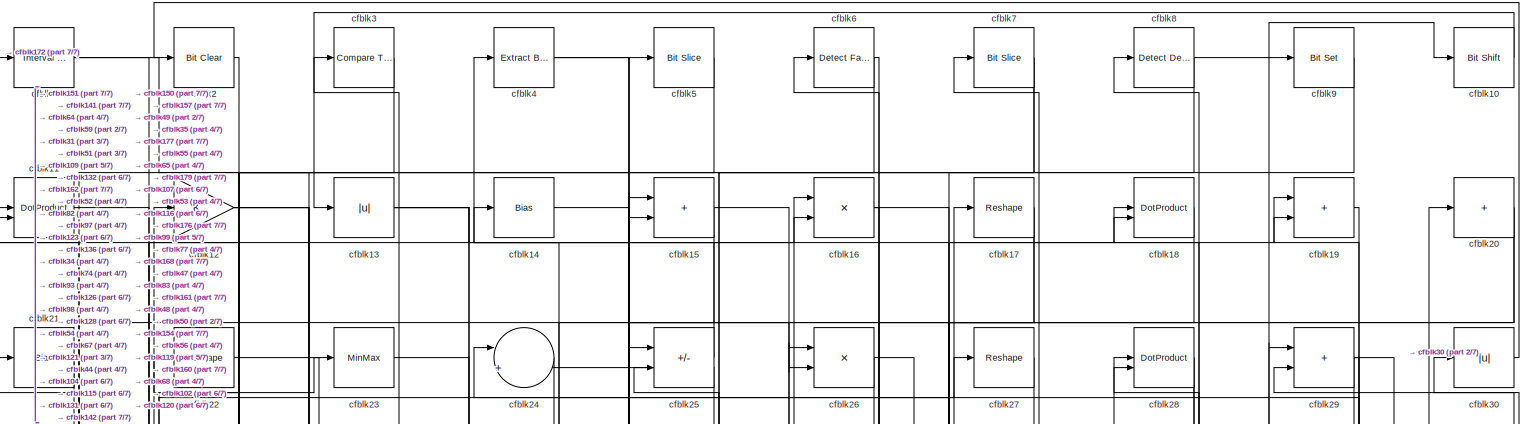
[diagram: root canvas - part 1/7, full width, top band]
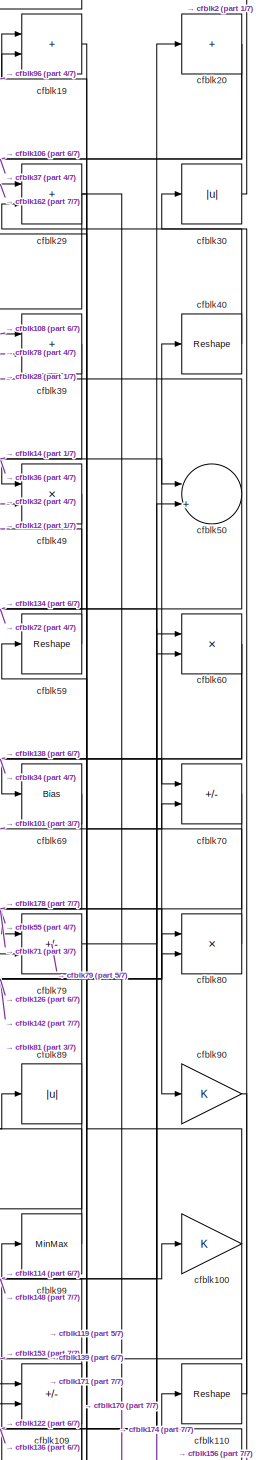
[diagram: root canvas - part 2/7, top right region]
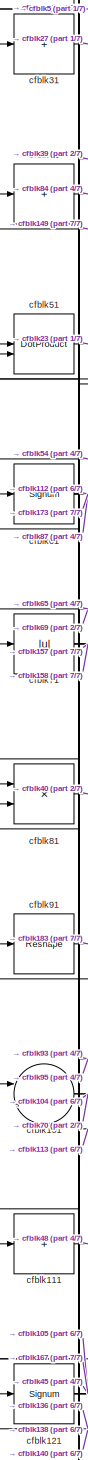
[diagram: root canvas - part 3/7, middle left region]
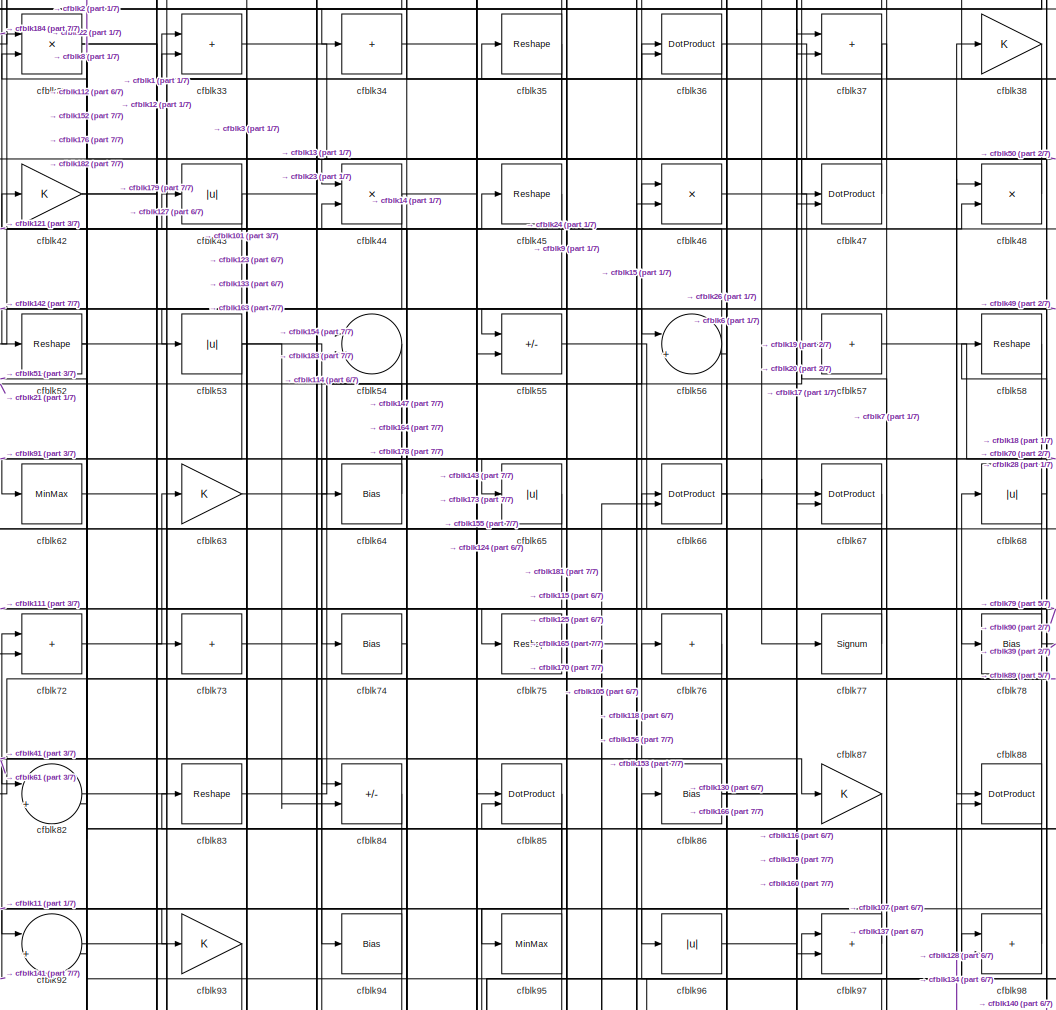
[diagram: root canvas - part 4/7, central region]
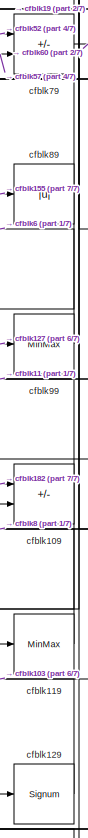
[diagram: root canvas - part 5/7, middle right region]
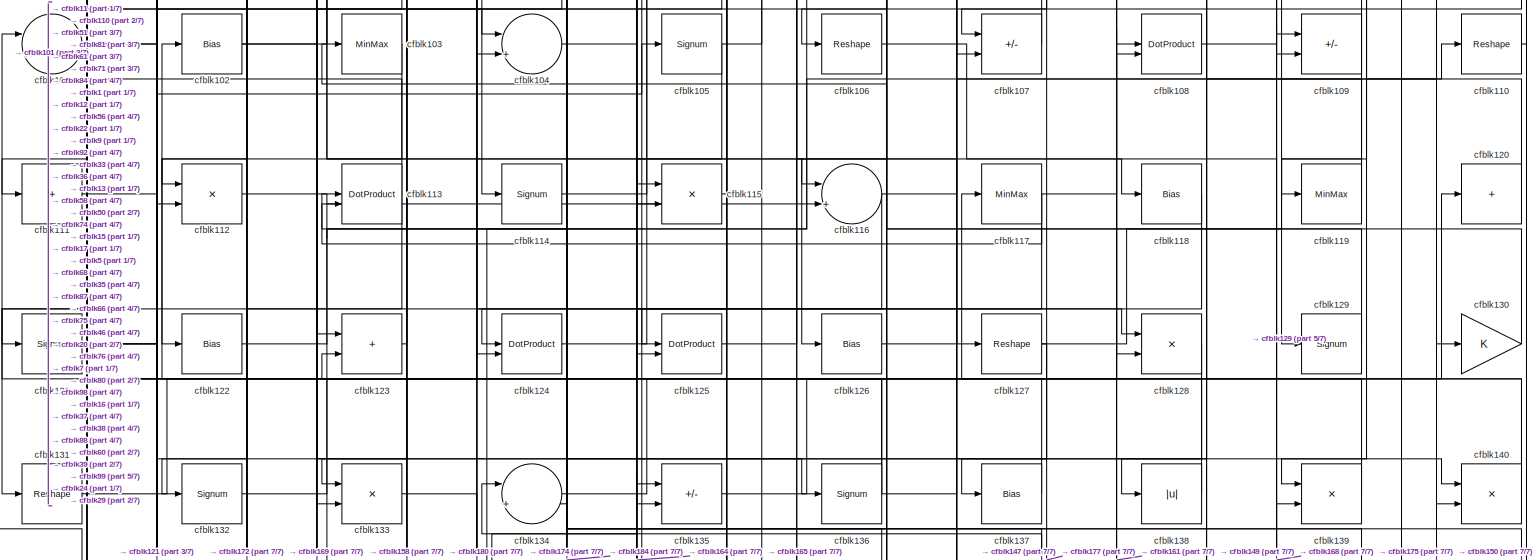
[diagram: root canvas - part 6/7, full width, middle band]
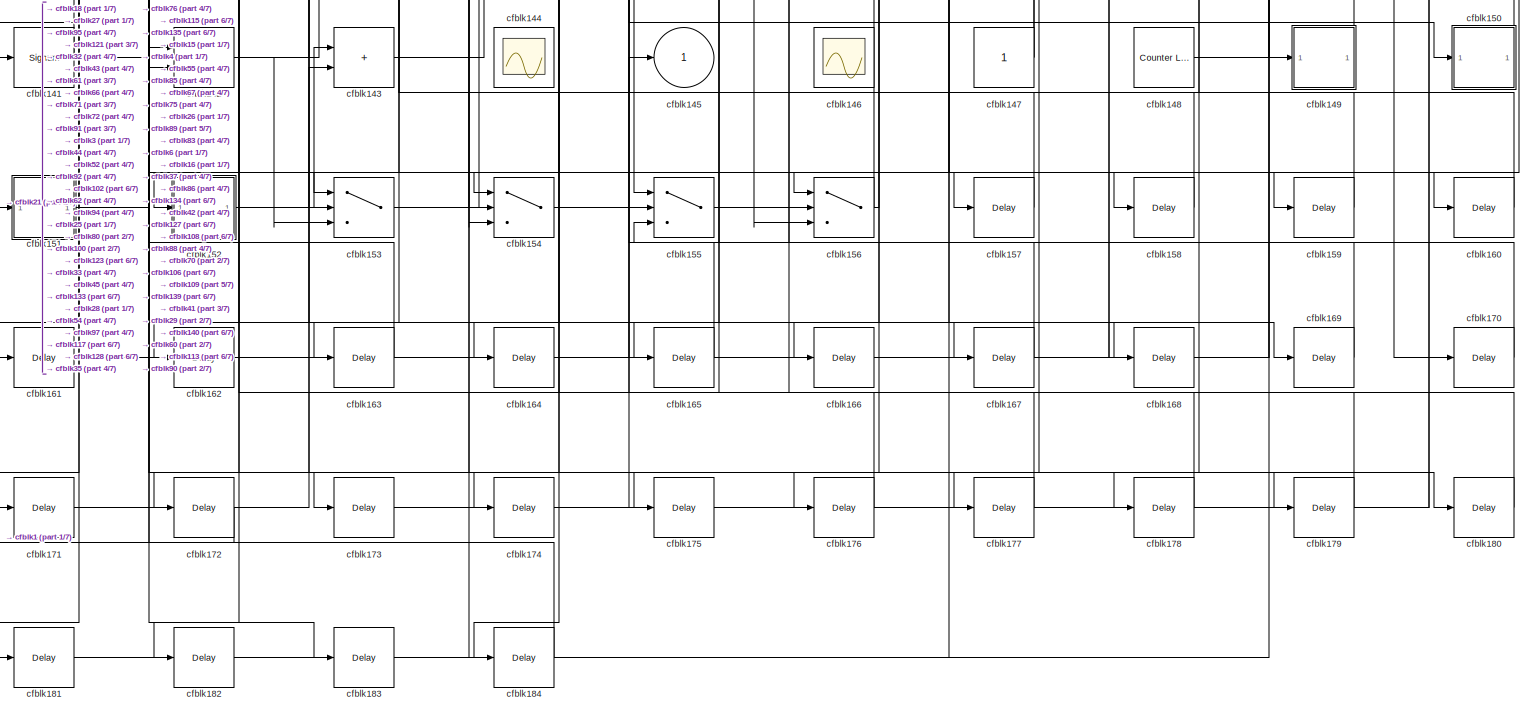
[diagram: root canvas - part 7/7, full width, bottom band]
MODEL slx_a82bd7659590
KIND model
CONFIG AbsTol = auto
CONFIG EnableMultiTasking = off
CONFIG FixedStep = auto
CONFIG MaxStep = auto
CONFIG MinStep = auto
CONFIG RelTol = 1e-3
CONFIG SampleTimeConstraint = Unconstrained
CONFIG SolverName = VariableStepAuto
CONFIG StartTime = 0.0
CONFIG StopTime = 10.0
BLOCK [Reference] cfblk1  REF=hdlsllib/Logic and Bit
Operations/Interval Test
  SourceBlock = hdlsllib/Logic and Bit\nOperations/Interval Test
  SourceType = Interval Test
BLOCK [Reference] cfblk10  REF=hdlsllib/Logic and Bit
Operations/Bit Shift
  SourceBlock = hdlsllib/Logic and Bit\nOperations/Bit Shift
  SourceType = Bit Shift
BLOCK [Gain] cfblk100
BLOCK [Sum] cfblk101
  Inputs = |++
BLOCK [Bias] cfblk102
  Bias = 0.0
  SaturateOnIntegerOverflow = off
BLOCK [MinMax] cfblk103
BLOCK [Sum] cfblk104
  Inputs = |++
BLOCK [Signum] cfblk105
BLOCK [Reshape] cfblk106
BLOCK [Sum] cfblk107
  IconShape = rectangular
  Inputs = +-
BLOCK [DotProduct] cfblk108
  OutDataTypeStr = Inherit: Inherit via internal rule
BLOCK [Sum] cfblk109
  IconShape = rectangular
  Inputs = +-
BLOCK [DotProduct] cfblk11
  OutDataTypeStr = Inherit: Inherit via internal rule
BLOCK [Reshape] cfblk110
BLOCK [Sum] cfblk111
  IconShape = rectangular
  Inputs = +
BLOCK [Product] cfblk112
  Inputs = */
  RndMeth = Zero
  SaturateOnIntegerOverflow = on
BLOCK [DotProduct] cfblk113
  OutDataTypeStr = Inherit: Inherit via internal rule
BLOCK [Signum] cfblk114
BLOCK [Product] cfblk115
  Inputs = */
  RndMeth = Zero
  SaturateOnIntegerOverflow = on
BLOCK [Sum] cfblk116
  Inputs = |++
BLOCK [MinMax] cfblk117
BLOCK [Bias] cfblk118
  Bias = 0.0
  SaturateOnIntegerOverflow = off
BLOCK [MinMax] cfblk119
BLOCK [Gain] cfblk12
BLOCK [Sum] cfblk120
  IconShape = rectangular
  Inputs = +
BLOCK [Signum] cfblk121
BLOCK [Bias] cfblk122
  Bias = 0.0
  SaturateOnIntegerOverflow = off
BLOCK [Sum] cfblk123
  IconShape = rectangular
BLOCK [DotProduct] cfblk124
  OutDataTypeStr = Inherit: Inherit via internal rule
BLOCK [DotProduct] cfblk125
  OutDataTypeStr = Inherit: Inherit via internal rule
BLOCK [Bias] cfblk126
  Bias = 0.0
  SaturateOnIntegerOverflow = off
BLOCK [Reshape] cfblk127
BLOCK [Product] cfblk128
  Inputs = */
  RndMeth = Zero
  SaturateOnIntegerOverflow = on
BLOCK [Signum] cfblk129
BLOCK [Abs] cfblk13
  SaturateOnIntegerOverflow = off
BLOCK [Gain] cfblk130
BLOCK [Reshape] cfblk131
BLOCK [Signum] cfblk132
BLOCK [Product] cfblk133
  Inputs = */
  RndMeth = Zero
  SaturateOnIntegerOverflow = on
BLOCK [Sum] cfblk134
  Inputs = |++
BLOCK [Sum] cfblk135
  IconShape = rectangular
  Inputs = +-
BLOCK [Signum] cfblk136
BLOCK [Bias] cfblk137
  Bias = 0.0
  SaturateOnIntegerOverflow = off
BLOCK [Abs] cfblk138
  SaturateOnIntegerOverflow = off
BLOCK [Product] cfblk139
  Inputs = */
  RndMeth = Zero
  SaturateOnIntegerOverflow = on
BLOCK [Bias] cfblk14
  Bias = 0.0
  SaturateOnIntegerOverflow = off
BLOCK [Product] cfblk140
  Inputs = */
  RndMeth = Zero
  SaturateOnIntegerOverflow = on
BLOCK [Signum] cfblk141
BLOCK [Sum] cfblk142
  IconShape = rectangular
BLOCK [Sum] cfblk143
  IconShape = rectangular
BLOCK [Scope] cfblk144
  Floating = on
  NumInputPorts = 1
  ScopeSpecificationString = Simulink.scopes.TimeScopeBlockCfg('CurrentConfiguration', extmgr.ConfigurationSet(extmgr.Configuration('Core','General UI',true,'FigureColor',[0.156862745098039 0.156862745098039 0.156862745098039]),extmgr.Configuration('Core','Source UI',true),extmgr.Configuration('Sources','WiredSimulink',true,'DataLoggingVariableName','ScopeData1','DataLoggingSaveFormat','StructureWithTime','DataLoggingLimitDat...<+2713ch>
BLOCK [Outport] cfblk145
  VectorParamsAs1DForOutWhenUnconnected = off
BLOCK [Scope] cfblk146
  Floating = on
  NumInputPorts = 1
  ScopeSpecificationString = Simulink.scopes.TimeScopeBlockCfg('CurrentConfiguration', extmgr.ConfigurationSet(extmgr.Configuration('Core','General UI',true,'FigureColor',[0.156862745098039 0.156862745098039 0.156862745098039]),extmgr.Configuration('Core','Source UI',true),extmgr.Configuration('Sources','WiredSimulink',true,'DataLoggingVariableName','ScopeData1','DataLoggingSaveFormat','StructureWithTime','DataLoggingLimitDat...<+2713ch>
BLOCK [Constant] cfblk147
  SampleTime = -1
BLOCK [Reference] cfblk148  REF=hdlsllib/Sources/Counter
Limited
  SourceBlock = hdlsllib/Sources/Counter\nLimited
  SourceType = Counter Limited
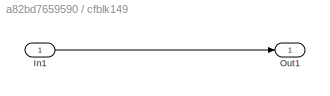
BLOCK [SubSystem] cfblk149
  LibrarySourceBlock = hdlsllib/Ports &\nSubsystems/Subsystem
BLOCK [Inport] cfblk149/In1
BLOCK [Outport] cfblk149/Out1
BLOCK [Sum] cfblk15
  IconShape = rectangular
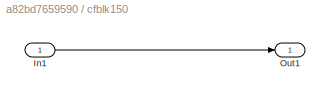
BLOCK [SubSystem] cfblk150
  LibrarySourceBlock = hdlsllib/Ports &\nSubsystems/Subsystem
BLOCK [Inport] cfblk150/In1
BLOCK [Outport] cfblk150/Out1
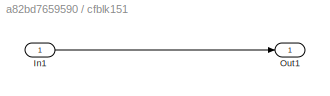
BLOCK [SubSystem] cfblk151
  LibrarySourceBlock = hdlsllib/Ports &\nSubsystems/Subsystem
BLOCK [Inport] cfblk151/In1
BLOCK [Outport] cfblk151/Out1
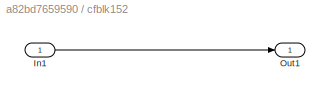
BLOCK [SubSystem] cfblk152
  LibrarySourceBlock = hdlsllib/Ports &\nSubsystems/Subsystem
BLOCK [Inport] cfblk152/In1
BLOCK [Outport] cfblk152/Out1
BLOCK [Switch] cfblk153
  InputSameDT = off
  SaturateOnIntegerOverflow = off
BLOCK [Switch] cfblk154
  InputSameDT = off
  SaturateOnIntegerOverflow = off
BLOCK [Switch] cfblk155
  InputSameDT = off
  SaturateOnIntegerOverflow = off
BLOCK [Switch] cfblk156
  InputSameDT = off
  SaturateOnIntegerOverflow = off
BLOCK [Delay] cfblk157
  InputPortMap = u0
  SampleTime = 1
BLOCK [Delay] cfblk158
  InputPortMap = u0
  SampleTime = 1
BLOCK [Delay] cfblk159
  InputPortMap = u0
  SampleTime = 1
BLOCK [Product] cfblk16
  Inputs = */
  RndMeth = Zero
  SaturateOnIntegerOverflow = on
BLOCK [Delay] cfblk160
  InputPortMap = u0
  SampleTime = 1
BLOCK [Delay] cfblk161
  InputPortMap = u0
  SampleTime = 1
BLOCK [Delay] cfblk162
  InputPortMap = u0
  SampleTime = 1
BLOCK [Delay] cfblk163
  InputPortMap = u0
  SampleTime = 1
BLOCK [Delay] cfblk164
  InputPortMap = u0
  SampleTime = 1
BLOCK [Delay] cfblk165
  InputPortMap = u0
  SampleTime = 1
BLOCK [Delay] cfblk166
  InputPortMap = u0
  SampleTime = 1
BLOCK [Delay] cfblk167
  InputPortMap = u0
  SampleTime = 1
BLOCK [Delay] cfblk168
  InputPortMap = u0
  SampleTime = 1
BLOCK [Delay] cfblk169
  InputPortMap = u0
  SampleTime = 1
BLOCK [Reshape] cfblk17
BLOCK [Delay] cfblk170
  InputPortMap = u0
  SampleTime = 1
BLOCK [Delay] cfblk171
  InputPortMap = u0
  SampleTime = 1
BLOCK [Delay] cfblk172
  InputPortMap = u0
  SampleTime = 1
BLOCK [Delay] cfblk173
  InputPortMap = u0
  SampleTime = 1
BLOCK [Delay] cfblk174
  InputPortMap = u0
  SampleTime = 1
BLOCK [Delay] cfblk175
  InputPortMap = u0
  SampleTime = 1
BLOCK [Delay] cfblk176
  InputPortMap = u0
  SampleTime = 1
BLOCK [Delay] cfblk177
  InputPortMap = u0
  SampleTime = 1
BLOCK [Delay] cfblk178
  InputPortMap = u0
  SampleTime = 1
BLOCK [Delay] cfblk179
  InputPortMap = u0
  SampleTime = 1
BLOCK [DotProduct] cfblk18
  OutDataTypeStr = Inherit: Inherit via internal rule
BLOCK [Delay] cfblk180
  InputPortMap = u0
  SampleTime = 1
BLOCK [Delay] cfblk181
  InputPortMap = u0
  SampleTime = 1
BLOCK [Delay] cfblk182
  InputPortMap = u0
  SampleTime = 1
BLOCK [Delay] cfblk183
  InputPortMap = u0
  SampleTime = 1
BLOCK [Delay] cfblk184
  InputPortMap = u0
  SampleTime = 1
BLOCK [Sum] cfblk19
  IconShape = rectangular
BLOCK [Reference] cfblk2  REF=simulink/Logic and Bit
Operations/Bit Clear
  LibrarySourceBlock = hdlsllib/Logic and Bit\nOperations/Bit Clear
  SourceBlock = simulink/Logic and Bit\nOperations/Bit Clear
  SourceType = Bit Clear
BLOCK [Sum] cfblk20
  IconShape = rectangular
  Inputs = +
BLOCK [Bias] cfblk21
  Bias = 0.0
  SaturateOnIntegerOverflow = off
BLOCK [Reshape] cfblk22
BLOCK [MinMax] cfblk23
BLOCK [Sum] cfblk24
  Inputs = |++
BLOCK [Sum] cfblk25
  IconShape = rectangular
  Inputs = +-
BLOCK [Product] cfblk26
  Inputs = */
  RndMeth = Zero
  SaturateOnIntegerOverflow = on
BLOCK [Reshape] cfblk27
BLOCK [DotProduct] cfblk28
  OutDataTypeStr = Inherit: Inherit via internal rule
BLOCK [Sum] cfblk29
  IconShape = rectangular
BLOCK [Reference] cfblk3  REF=hdlsllib/Logic and Bit
Operations/Compare
To Zero
  SourceBlock = hdlsllib/Logic and Bit\nOperations/Compare\nTo Zero
  SourceType = Compare To Zero
BLOCK [Abs] cfblk30
  SaturateOnIntegerOverflow = off
BLOCK [Sum] cfblk31
  IconShape = rectangular
  Inputs = +
BLOCK [Product] cfblk32
  Inputs = */
  RndMeth = Zero
  SaturateOnIntegerOverflow = on
BLOCK [Sum] cfblk33
  IconShape = rectangular
BLOCK [Sum] cfblk34
  IconShape = rectangular
  Inputs = +
BLOCK [Reshape] cfblk35
BLOCK [DotProduct] cfblk36
  OutDataTypeStr = Inherit: Inherit via internal rule
BLOCK [Sum] cfblk37
  IconShape = rectangular
BLOCK [Gain] cfblk38
BLOCK [Sum] cfblk39
  IconShape = rectangular
BLOCK [Reference] cfblk4  REF=simulink/Logic and Bit
Operations/Extract Bits
  LibrarySourceBlock = hdlsllib/Logic and Bit\nOperations/Extract Bits
  SourceBlock = simulink/Logic and Bit\nOperations/Extract Bits
  SourceType = Extract Bits
BLOCK [Reshape] cfblk40
BLOCK [Sum] cfblk41
  IconShape = rectangular
  Inputs = +
BLOCK [Gain] cfblk42
BLOCK [Abs] cfblk43
  SaturateOnIntegerOverflow = off
BLOCK [Product] cfblk44
  Inputs = */
  RndMeth = Zero
  SaturateOnIntegerOverflow = on
BLOCK [Reshape] cfblk45
BLOCK [Product] cfblk46
  Inputs = */
  RndMeth = Zero
  SaturateOnIntegerOverflow = on
BLOCK [DotProduct] cfblk47
  OutDataTypeStr = Inherit: Inherit via internal rule
BLOCK [Product] cfblk48
  Inputs = */
  RndMeth = Zero
  SaturateOnIntegerOverflow = on
BLOCK [Product] cfblk49
  Inputs = */
  RndMeth = Zero
  SaturateOnIntegerOverflow = on
BLOCK [Reference] cfblk5  REF=hdlsllib/Logic and Bit
Operations/Bit Slice
  SourceBlock = hdlsllib/Logic and Bit\nOperations/Bit Slice
  SourceType = Bit Slice
BLOCK [Sum] cfblk50
  Inputs = |++
BLOCK [DotProduct] cfblk51
  OutDataTypeStr = Inherit: Inherit via internal rule
BLOCK [Reshape] cfblk52
BLOCK [Abs] cfblk53
  SaturateOnIntegerOverflow = off
BLOCK [Sum] cfblk54
  Inputs = |++
BLOCK [Sum] cfblk55
  IconShape = rectangular
  Inputs = +-
BLOCK [Sum] cfblk56
  Inputs = |++
BLOCK [Sum] cfblk57
  IconShape = rectangular
  Inputs = +
BLOCK [Reshape] cfblk58
BLOCK [Reshape] cfblk59
BLOCK [Reference] cfblk6  REF=hdlsllib/Logic and Bit
Operations/Detect Fall
Negative
  SourceBlock = hdlsllib/Logic and Bit\nOperations/Detect Fall\nNegative
  SourceType = Detect Fall Negative
BLOCK [Product] cfblk60
  Inputs = */
  RndMeth = Zero
  SaturateOnIntegerOverflow = on
BLOCK [Signum] cfblk61
BLOCK [MinMax] cfblk62
BLOCK [Gain] cfblk63
BLOCK [Bias] cfblk64
  Bias = 0.0
  SaturateOnIntegerOverflow = off
BLOCK [Abs] cfblk65
  SaturateOnIntegerOverflow = off
BLOCK [DotProduct] cfblk66
  OutDataTypeStr = Inherit: Inherit via internal rule
BLOCK [DotProduct] cfblk67
  OutDataTypeStr = Inherit: Inherit via internal rule
BLOCK [Abs] cfblk68
  SaturateOnIntegerOverflow = off
BLOCK [Bias] cfblk69
  Bias = 0.0
  SaturateOnIntegerOverflow = off
BLOCK [Reference] cfblk7  REF=hdlsllib/Logic and Bit
Operations/Bit Slice
  SourceBlock = hdlsllib/Logic and Bit\nOperations/Bit Slice
  SourceType = Bit Slice
BLOCK [Sum] cfblk70
  IconShape = rectangular
  Inputs = +-
BLOCK [Abs] cfblk71
  SaturateOnIntegerOverflow = off
BLOCK [Sum] cfblk72
  IconShape = rectangular
BLOCK [Sum] cfblk73
  IconShape = rectangular
  Inputs = +
BLOCK [Bias] cfblk74
  Bias = 0.0
  SaturateOnIntegerOverflow = off
BLOCK [Reshape] cfblk75
BLOCK [Sum] cfblk76
  IconShape = rectangular
  Inputs = +
BLOCK [Signum] cfblk77
BLOCK [Bias] cfblk78
  Bias = 0.0
  SaturateOnIntegerOverflow = off
BLOCK [Sum] cfblk79
  IconShape = rectangular
  Inputs = +-
BLOCK [Reference] cfblk8  REF=simulink/Logic and Bit
Operations/Detect
Decrease
  LibrarySourceBlock = hdlsllib/Logic and Bit\nOperations/Detect\nDecrease
  SourceBlock = simulink/Logic and Bit\nOperations/Detect\nDecrease
  SourceType = Detect Decrease
BLOCK [Product] cfblk80
  Inputs = */
  RndMeth = Zero
  SaturateOnIntegerOverflow = on
BLOCK [Product] cfblk81
  Inputs = */
  RndMeth = Zero
  SaturateOnIntegerOverflow = on
BLOCK [Sum] cfblk82
  Inputs = |++
BLOCK [Reshape] cfblk83
BLOCK [Sum] cfblk84
  IconShape = rectangular
  Inputs = +-
BLOCK [DotProduct] cfblk85
  OutDataTypeStr = Inherit: Inherit via internal rule
BLOCK [Bias] cfblk86
  Bias = 0.0
  SaturateOnIntegerOverflow = off
BLOCK [Gain] cfblk87
BLOCK [DotProduct] cfblk88
  OutDataTypeStr = Inherit: Inherit via internal rule
BLOCK [Abs] cfblk89
  SaturateOnIntegerOverflow = off
BLOCK [Reference] cfblk9  REF=simulink/Logic and Bit
Operations/Bit Set
  LibrarySourceBlock = hdlsllib/Logic and Bit\nOperations/Bit Set
  SourceBlock = simulink/Logic and Bit\nOperations/Bit Set
  SourceType = Bit Set
BLOCK [Gain] cfblk90
BLOCK [Reshape] cfblk91
BLOCK [Sum] cfblk92
  Inputs = |++
BLOCK [Gain] cfblk93
BLOCK [Bias] cfblk94
  Bias = 0.0
  SaturateOnIntegerOverflow = off
BLOCK [MinMax] cfblk95
BLOCK [Abs] cfblk96
  SaturateOnIntegerOverflow = off
BLOCK [Sum] cfblk97
  IconShape = rectangular
BLOCK [Sum] cfblk98
  IconShape = rectangular
BLOCK [MinMax] cfblk99
NET cfblk100:1 -> cfblk153:1, cfblk19:1
NET cfblk101:1 -> cfblk104:1, cfblk70:2
NET cfblk102:1 -> cfblk169:1, cfblk9:1
LINE cfblk103:1 -> cfblk122:1
LINE cfblk104:1 -> cfblk5:1
NET cfblk105:1 -> cfblk125:2, cfblk66:2
LINE cfblk106:1 -> cfblk149:1
LINE cfblk107:1 -> cfblk16:1
LINE cfblk108:1 -> cfblk39:1
NET cfblk109:1 -> cfblk11:1, cfblk129:1
LINE cfblk10:1 -> cfblk13:1
LINE cfblk110:1 -> cfblk30:1
LINE cfblk111:1 -> cfblk48:2
LINE cfblk112:1 -> cfblk116:2
NET cfblk113:1 -> cfblk172:1, cfblk61:1
LINE cfblk114:1 -> cfblk50:2
LINE cfblk115:1 -> cfblk35:1
NET cfblk116:1 -> cfblk135:2, cfblk98:1
NET cfblk117:1 -> cfblk108:1, cfblk113:2, cfblk174:1
LINE cfblk118:1 -> cfblk131:1
LINE cfblk119:1 -> cfblk8:1
LINE cfblk11:1 -> cfblk98:2
LINE cfblk120:1 -> cfblk24:1
NET cfblk121:1 -> cfblk105:1, cfblk167:1, cfblk45:1
LINE cfblk122:1 -> cfblk20:1
LINE cfblk123:1 -> cfblk33:1
LINE cfblk124:1 -> cfblk68:1
LINE cfblk125:1 -> cfblk46:2
LINE cfblk126:1 -> cfblk80:1
NET cfblk127:1 -> cfblk177:1, cfblk99:1
LINE cfblk128:1 -> cfblk184:1
LINE cfblk129:1 -> cfblk103:1
NET cfblk12:1 -> cfblk136:1, cfblk34:1, cfblk74:1
LINE cfblk130:1 -> cfblk76:1
LINE cfblk131:1 -> cfblk15:2
LINE cfblk132:1 -> cfblk104:2
LINE cfblk133:1 -> cfblk180:1
LINE cfblk134:1 -> cfblk38:1
LINE cfblk135:1 -> cfblk120:1
NET cfblk136:1 -> cfblk110:1, cfblk11:2, cfblk81:2
LINE cfblk137:1 -> cfblk117:1
LINE cfblk138:1 -> cfblk101:1
LINE cfblk139:1 -> cfblk102:1
NET cfblk13:1 -> cfblk128:1, cfblk16:2, cfblk54:2
NET cfblk140:1 -> cfblk51:2, cfblk58:1
NET cfblk141:1 -> cfblk175:1, cfblk66:1, cfblk72:1
NET cfblk142:1 -> cfblk153:3, cfblk25:1, cfblk80:2
LINE cfblk143:1 -> cfblk85:1
NET cfblk147:1 -> cfblk134:1, cfblk42:1
LINE cfblk148:1 -> cfblk100:1
LINE cfblk149/In1:1 -> cfblk149/Out1:1
LINE cfblk149:1 -> cfblk41:1
LINE cfblk14:1 -> cfblk49:1
LINE cfblk150/In1:1 -> cfblk150/Out1:1
LINE cfblk150:1 -> cfblk113:1
LINE cfblk151/In1:1 -> cfblk151/Out1:1
LINE cfblk151:1 -> cfblk18:1
LINE cfblk152/In1:1 -> cfblk152/Out1:1
LINE cfblk152:1 -> cfblk143:1
LINE cfblk153:1 -> cfblk97:1
LINE cfblk154:1 -> cfblk145:1
LINE cfblk155:1 -> cfblk89:1
NET cfblk156:1 -> cfblk83:1, cfblk86:1
LINE cfblk157:1 -> cfblk15:1
LINE cfblk158:1 -> cfblk123:2
LINE cfblk159:1 -> cfblk33:2
NET cfblk15:1 -> cfblk44:1, cfblk97:2
LINE cfblk160:1 -> cfblk28:2
LINE cfblk161:1 -> cfblk108:2
LINE cfblk162:1 -> cfblk29:1
LINE cfblk163:1 -> cfblk142:1
LINE cfblk164:1 -> cfblk135:1
LINE cfblk165:1 -> cfblk115:1
LINE cfblk166:1 -> cfblk88:2
LINE cfblk167:1 -> cfblk156:2
LINE cfblk168:1 -> cfblk139:2
LINE cfblk169:1 -> cfblk155:3
NET cfblk16:1 -> cfblk116:1, cfblk168:1
LINE cfblk170:1 -> cfblk85:2
LINE cfblk171:1 -> cfblk143:2
LINE cfblk172:1 -> cfblk1:1
LINE cfblk173:1 -> cfblk55:2
LINE cfblk174:1 -> cfblk60:2
LINE cfblk175:1 -> cfblk140:2
LINE cfblk176:1 -> cfblk92:2
LINE cfblk177:1 -> cfblk25:2
LINE cfblk178:1 -> cfblk44:2
LINE cfblk179:1 -> cfblk26:1
NET cfblk17:1 -> cfblk115:2, cfblk47:2
LINE cfblk180:1 -> cfblk155:2
LINE cfblk181:1 -> cfblk37:1
LINE cfblk182:1 -> cfblk109:1
LINE cfblk183:1 -> cfblk54:1
LINE cfblk184:1 -> cfblk32:1
LINE cfblk18:1 -> cfblk141:1
LINE cfblk19:1 -> cfblk119:1
NET cfblk1:1 -> cfblk123:1, cfblk93:1
NET cfblk20:1 -> cfblk106:1, cfblk37:2
LINE cfblk21:1 -> cfblk151:1
LINE cfblk22:1 -> cfblk126:1
LINE cfblk23:1 -> cfblk67:2
LINE cfblk24:1 -> cfblk121:1
LINE cfblk25:1 -> cfblk4:1
NET cfblk26:1 -> cfblk53:1, cfblk77:1
LINE cfblk27:1 -> cfblk161:1
NET cfblk28:1 -> cfblk154:3, cfblk56:2
NET cfblk29:1 -> cfblk139:1, cfblk170:1, cfblk171:1
LINE cfblk2:1 -> cfblk82:1
LINE cfblk30:1 -> cfblk2:1
LINE cfblk31:1 -> cfblk27:1
NET cfblk32:1 -> cfblk49:2, cfblk73:1
LINE cfblk33:1 -> cfblk88:1
LINE cfblk34:1 -> cfblk70:1
NET cfblk35:1 -> cfblk124:2, cfblk154:1, cfblk24:2
NET cfblk36:1 -> cfblk133:1, cfblk50:1
NET cfblk37:1 -> cfblk107:1, cfblk95:1, cfblk96:1
LINE cfblk38:1 -> cfblk82:2
LINE cfblk39:1 -> cfblk81:1
LINE cfblk3:1 -> cfblk162:1
LINE cfblk40:1 -> cfblk29:2
LINE cfblk41:1 -> cfblk84:1
NET cfblk42:1 -> cfblk36:1, cfblk56:1
NET cfblk43:1 -> cfblk142:2, cfblk47:1
NET cfblk44:1 -> cfblk152:1, cfblk36:2
LINE cfblk45:1 -> cfblk163:1
LINE cfblk46:1 -> cfblk130:1
LINE cfblk47:1 -> cfblk14:1
LINE cfblk48:1 -> cfblk7:1
LINE cfblk49:1 -> cfblk72:2
NET cfblk4:1 -> cfblk150:1, cfblk26:2
NET cfblk50:1 -> cfblk134:2, cfblk28:1
LINE cfblk51:1 -> cfblk23:1
NET cfblk52:1 -> cfblk182:1, cfblk79:1
NET cfblk53:1 -> cfblk62:1, cfblk84:2, cfblk94:1
LINE cfblk54:1 -> cfblk91:1
LINE cfblk55:1 -> cfblk90:1
NET cfblk56:1 -> cfblk133:2, cfblk43:1
LINE cfblk57:1 -> cfblk79:2
LINE cfblk58:1 -> cfblk114:1
LINE cfblk59:1 -> cfblk12:1
LINE cfblk5:1 -> cfblk31:1
NET cfblk60:1 -> cfblk138:1, cfblk69:1
NET cfblk61:1 -> cfblk112:2, cfblk173:1, cfblk87:1
LINE cfblk62:1 -> cfblk179:1
LINE cfblk63:1 -> cfblk46:1
LINE cfblk64:1 -> cfblk21:1
LINE cfblk65:1 -> cfblk111:1
NET cfblk66:1 -> cfblk166:1, cfblk67:1
LINE cfblk67:1 -> cfblk165:1
NET cfblk68:1 -> cfblk137:1, cfblk18:2
LINE cfblk69:1 -> cfblk71:1
NET cfblk6:1 -> cfblk176:1, cfblk55:1
LINE cfblk70:1 -> cfblk178:1
NET cfblk71:1 -> cfblk140:1, cfblk157:1, cfblk158:1
LINE cfblk72:1 -> cfblk63:1
LINE cfblk73:1 -> cfblk78:1
LINE cfblk74:1 -> cfblk124:1
NET cfblk75:1 -> cfblk118:1, cfblk156:3
LINE cfblk76:1 -> cfblk164:1
LINE cfblk77:1 -> cfblk64:1
NET cfblk78:1 -> cfblk39:2, cfblk75:1
LINE cfblk79:1 -> cfblk60:1
NET cfblk7:1 -> cfblk107:2, cfblk132:1
LINE cfblk80:1 -> cfblk59:1
LINE cfblk81:1 -> cfblk40:1
LINE cfblk82:1 -> cfblk48:1
LINE cfblk83:1 -> cfblk17:1
LINE cfblk84:1 -> cfblk112:1
NET cfblk85:1 -> cfblk154:2, cfblk155:1
NET cfblk86:1 -> cfblk159:1, cfblk160:1
LINE cfblk87:1 -> cfblk125:1
NET cfblk88:1 -> cfblk128:2, cfblk32:2
NET cfblk89:1 -> cfblk109:2, cfblk57:1
NET cfblk8:1 -> cfblk10:1, cfblk52:1
LINE cfblk90:1 -> cfblk156:1
LINE cfblk91:1 -> cfblk183:1
LINE cfblk92:1 -> cfblk127:1
LINE cfblk93:1 -> cfblk101:2
NET cfblk94:1 -> cfblk153:2, cfblk92:1
NET cfblk95:1 -> cfblk181:1, cfblk51:1
LINE cfblk96:1 -> cfblk19:2
LINE cfblk97:1 -> cfblk22:1
LINE cfblk98:1 -> cfblk3:1
LINE cfblk99:1 -> cfblk6:1
LINE cfblk9:1 -> cfblk65:1
note: NET lines group one-source signal fan-out (src -> all destinations, sorted); 1:1 wires keep LINE
